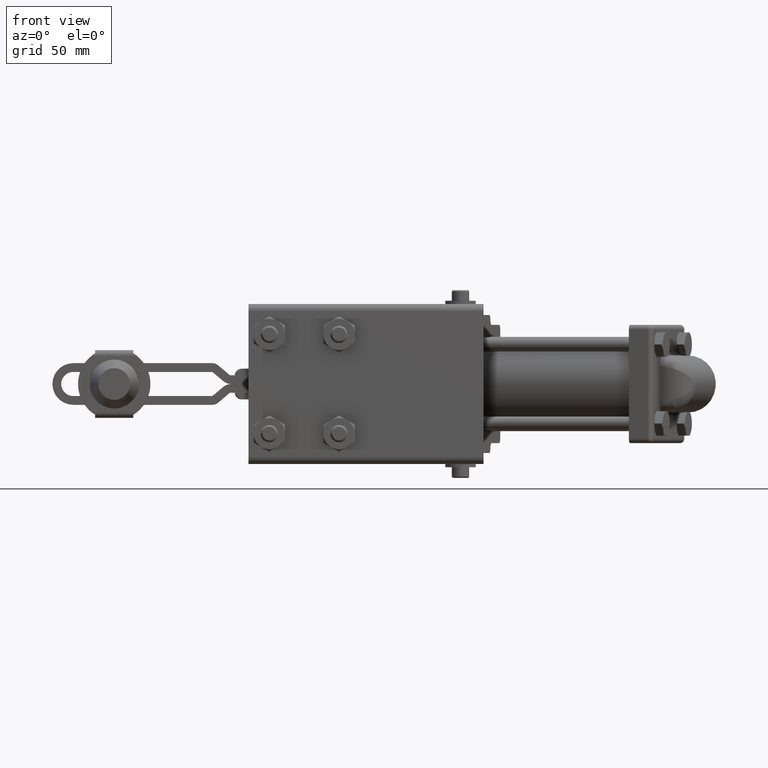
[diagram: clean part render]
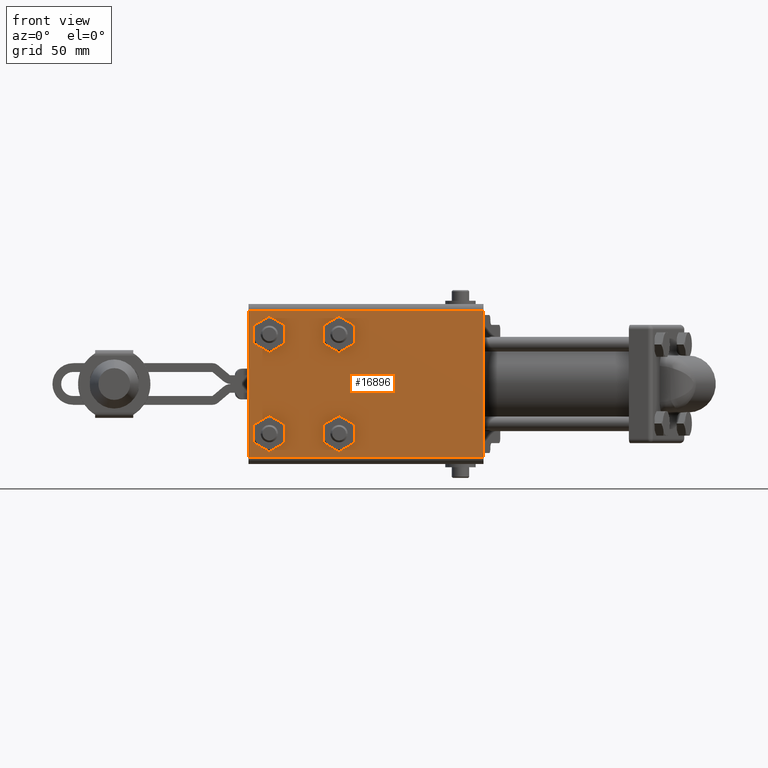
[diagram: same view with one face highlighted and labeled with its STEP entity id]
A machine part, front view. The second image highlights one B-rep face of the part: STEP entity #16896.
In plain terms, the highlighted planar face has unit normal (0, 1, 0).
Its self-contained STEP definition (entity closure, byte-faithful):
#132 = VERTEX_POINT ( 'NONE', #11380 ) ;
#223 = ORIENTED_EDGE ( 'NONE', *, *, #18607, .T. ) ;
#272 = DIRECTION ( 'NONE',  ( 1.000000000000000000, 0.0000000000000000000, 0.0000000000000000000 ) ) ;
#279 = CARTESIAN_POINT ( 'NONE',  ( -8.700000000000034800, -3.200000000000006000, -22.65000000000001600 ) ) ;
#495 = DIRECTION ( 'NONE',  ( 1.000000000000000000, 0.0000000000000000000, 9.721878981011610300E-016 ) ) ;
#627 = AXIS2_PLACEMENT_3D ( 'NONE', #22513, #6973, #25097 ) ;
#774 = CIRCLE ( 'NONE', #18172, 7.137400000000000400 ) ;
#881 = CARTESIAN_POINT ( 'NONE',  ( -40.50000000000003600, -3.200000000000010800, 22.64999999999998400 ) ) ;
#1235 = VERTEX_POINT ( 'NONE', #28208 ) ;
#1425 = DIRECTION ( 'NONE',  ( 2.813005866653587400E-018, 1.000000000000000000, 1.919918539452345000E-017 ) ) ;
#1580 = DIRECTION ( 'NONE',  ( 1.000000000000000000, 0.0000000000000000000, 0.0000000000000000000 ) ) ;
#1596 = CARTESIAN_POINT ( 'NONE',  ( -50.00000000000002800, -3.199999999999998000, -33.29000000000000600 ) ) ;
#1669 = CARTESIAN_POINT ( 'NONE',  ( 57.19999999999997400, -3.199999999999998000, -33.29000000000000600 ) ) ;
#1708 = CIRCLE ( 'NONE', #20861, 7.137400000000002200 ) ;
#1905 = CIRCLE ( 'NONE', #5351, 7.137399999999999500 ) ;
#1972 = EDGE_CURVE ( 'NONE', #27231, #5147, #21167, .T. ) ;
#2001 = CIRCLE ( 'NONE', #7254, 7.137400000000002200 ) ;
#2128 = AXIS2_PLACEMENT_3D ( 'NONE', #11473, #22983, #28482 ) ;
#2218 = ORIENTED_EDGE ( 'NONE', *, *, #27636, .T. ) ;
#2386 = DIRECTION ( 'NONE',  ( 2.813005866653587400E-018, 1.000000000000000000, 1.919918539452345000E-017 ) ) ;
#2661 = CARTESIAN_POINT ( 'NONE',  ( -33.36260000000003600, -3.199999999999999300, -22.65000000000001600 ) ) ;
#2709 = ORIENTED_EDGE ( 'NONE', *, *, #22244, .T. ) ;
#2844 = DIRECTION ( 'NONE',  ( 1.000000000000000000, 0.0000000000000000000, 0.0000000000000000000 ) ) ;
#2846 = EDGE_CURVE ( 'NONE', #6351, #3181, #16622, .T. ) ;
#3115 = EDGE_CURVE ( 'NONE', #22178, #11257, #2001, .T. ) ;
#3181 = VERTEX_POINT ( 'NONE', #7623 ) ;
#3268 = CARTESIAN_POINT ( 'NONE',  ( 57.19999999999997400, -3.199999999999998000, -33.29000000000000600 ) ) ;
#3492 = EDGE_CURVE ( 'NONE', #132, #1235, #1905, .T. ) ;
#3577 = DIRECTION ( 'NONE',  ( 1.000000000000000000, 0.0000000000000000000, 2.430469745252902400E-015 ) ) ;
#3585 = CIRCLE ( 'NONE', #16323, 7.137399999999999500 ) ;
#3631 = EDGE_LOOP ( 'NONE', ( #26752, #4483, #10287, #2218 ) ) ;
#3723 = ORIENTED_EDGE ( 'NONE', *, *, #20007, .T. ) ;
#4018 = CARTESIAN_POINT ( 'NONE',  ( 57.19999999999997400, -3.200000000000006400, 33.28999999999998500 ) ) ;
#4041 = CARTESIAN_POINT ( 'NONE',  ( -40.50000000000003600, -3.200000000000006000, -22.65000000000001600 ) ) ;
#4132 = FACE_BOUND ( 'NONE', #20227, .T. ) ;
#4134 = EDGE_CURVE ( 'NONE', #29221, #5147, #22537, .T. ) ;
#4262 = DIRECTION ( 'NONE',  ( 2.813005866653587400E-018, 1.000000000000000000, 1.919918539452345000E-017 ) ) ;
#4327 = DIRECTION ( 'NONE',  ( 2.813005866653587400E-018, 1.000000000000000000, 1.919918539452345000E-017 ) ) ;
#4364 = CARTESIAN_POINT ( 'NONE',  ( -8.700000000000034800, -3.200000000000010800, 22.64999999999998400 ) ) ;
#4423 = CARTESIAN_POINT ( 'NONE',  ( -40.50000000000003600, -3.200000000000010800, 22.64999999999998400 ) ) ;
#4483 = ORIENTED_EDGE ( 'NONE', *, *, #4134, .F. ) ;
#4595 = DIRECTION ( 'NONE',  ( 2.813005866653587400E-018, 1.000000000000000000, 1.919918539452345000E-017 ) ) ;
#4738 = AXIS2_PLACEMENT_3D ( 'NONE', #24345, #8804, #26925 ) ;
#4828 = CARTESIAN_POINT ( 'NONE',  ( -44.06870000000004900, -3.199999999999998800, -28.83116971697105400 ) ) ;
#4890 = ORIENTED_EDGE ( 'NONE', *, *, #19924, .T. ) ;
#5147 = VERTEX_POINT ( 'NONE', #1596 ) ;
#5324 = CARTESIAN_POINT ( 'NONE',  ( -8.700000000000034800, -3.200000000000006000, -22.65000000000001600 ) ) ;
#5351 = AXIS2_PLACEMENT_3D ( 'NONE', #23075, #1425, #21794 ) ;
#5527 = AXIS2_PLACEMENT_3D ( 'NONE', #31255, #15768, #272 ) ;
#6042 = CIRCLE ( 'NONE', #10139, 7.137399999999999500 ) ;
#6351 = VERTEX_POINT ( 'NONE', #4828 ) ;
#6440 = CARTESIAN_POINT ( 'NONE',  ( -5.131300000000015500, -3.199999999999998400, -28.83116971697108300 ) ) ;
#6621 = DIRECTION ( 'NONE',  ( 1.000000000000000000, 0.0000000000000000000, 0.0000000000000000000 ) ) ;
#6714 = DIRECTION ( 'NONE',  ( 2.813005866653587400E-018, 1.000000000000000000, 1.919918539452345000E-017 ) ) ;
#6722 = DIRECTION ( 'NONE',  ( 2.813005866653587400E-018, 1.000000000000000000, 1.919918539452345000E-017 ) ) ;
#6756 = DIRECTION ( 'NONE',  ( 2.813005866653587400E-018, 1.000000000000000000, 1.919918539452345000E-017 ) ) ;
#6790 = DIRECTION ( 'NONE',  ( 2.813005866653587400E-018, 1.000000000000000000, 1.919918539452345000E-017 ) ) ;
#6853 = CARTESIAN_POINT ( 'NONE',  ( -1.562600000000032000, -3.200000000000005100, 22.64999999999998400 ) ) ;
#6973 = DIRECTION ( 'NONE',  ( 2.813005866653587400E-018, 1.000000000000000000, 1.919918539452345000E-017 ) ) ;
#7027 = DIRECTION ( 'NONE',  ( 1.000000000000000000, 0.0000000000000000000, 0.0000000000000000000 ) ) ;
#7042 = CARTESIAN_POINT ( 'NONE',  ( -8.700000000000034800, -3.200000000000010800, 22.64999999999998400 ) ) ;
#7223 = VERTEX_POINT ( 'NONE', #8726 ) ;
#7239 = AXIS2_PLACEMENT_3D ( 'NONE', #22306, #6790, #24919 ) ;
#7254 = AXIS2_PLACEMENT_3D ( 'NONE', #8868, #6722, #11928 ) ;
#7515 = ORIENTED_EDGE ( 'NONE', *, *, #8228, .F. ) ;
#7536 = AXIS2_PLACEMENT_3D ( 'NONE', #22225, #6714, #24829 ) ;
#7623 = CARTESIAN_POINT ( 'NONE',  ( -47.63740000000003500, -3.199999999999999300, -22.65000000000001600 ) ) ;
#7916 = ORIENTED_EDGE ( 'NONE', *, *, #8446, .T. ) ;
#7919 = DIRECTION ( 'NONE',  ( 1.000000000000000000, 0.0000000000000000000, 0.0000000000000000000 ) ) ;
#7979 = ORIENTED_EDGE ( 'NONE', *, *, #25820, .T. ) ;
#7981 = CARTESIAN_POINT ( 'NONE',  ( -8.700000000000034800, -3.200000000000006000, -22.65000000000001600 ) ) ;
#8133 = CIRCLE ( 'NONE', #23530, 7.137400000000002200 ) ;
#8228 = EDGE_CURVE ( 'NONE', #18407, #25252, #10527, .T. ) ;
#8375 = CARTESIAN_POINT ( 'NONE',  ( -44.06870000000004200, -3.200000000000006000, 28.83116971697103600 ) ) ;
#8393 = CIRCLE ( 'NONE', #5527, 7.137400000000002200 ) ;
#8446 = EDGE_CURVE ( 'NONE', #10347, #13187, #3585, .T. ) ;
#8541 = LINE ( 'NONE', #19381, #29165 ) ;
#8726 = CARTESIAN_POINT ( 'NONE',  ( -44.06870000000005700, -3.200000000000000200, -16.46883028302897100 ) ) ;
#8804 = DIRECTION ( 'NONE',  ( 2.813005866653587400E-018, 1.000000000000000000, 1.919918539452345000E-017 ) ) ;
#8868 = CARTESIAN_POINT ( 'NONE',  ( -40.50000000000003600, -3.200000000000010800, 22.64999999999998400 ) ) ;
#9070 = ORIENTED_EDGE ( 'NONE', *, *, #32392, .T. ) ;
#9154 = CARTESIAN_POINT ( 'NONE',  ( -8.700000000000034800, -3.200000000000010800, 22.64999999999998400 ) ) ;
#9157 = CARTESIAN_POINT ( 'NONE',  ( -33.36260000000003600, -3.200000000000010800, 22.64999999999998400 ) ) ;
#9265 = EDGE_CURVE ( 'NONE', #11257, #17417, #27192, .T. ) ;
#9561 = ORIENTED_EDGE ( 'NONE', *, *, #23945, .T. ) ;
#9604 = EDGE_CURVE ( 'NONE', #25508, #6351, #8133, .T. ) ;
#10139 = AXIS2_PLACEMENT_3D ( 'NONE', #279, #18368, #2844 ) ;
#10209 = FACE_OUTER_BOUND ( 'NONE', #3631, .T. ) ;
#10270 = AXIS2_PLACEMENT_3D ( 'NONE', #881, #4595, #27236 ) ;
#10287 = ORIENTED_EDGE ( 'NONE', *, *, #22156, .F. ) ;
#10347 = VERTEX_POINT ( 'NONE', #22400 ) ;
#10527 = CIRCLE ( 'NONE', #31478, 7.137400000000000400 ) ;
#10534 = VERTEX_POINT ( 'NONE', #21358 ) ;
#10588 = DIRECTION ( 'NONE',  ( 1.000000000000000000, 0.0000000000000000000, 1.944375796202322800E-015 ) ) ;
#11122 = CIRCLE ( 'NONE', #2128, 7.137400000000002200 ) ;
#11257 = VERTEX_POINT ( 'NONE', #28058 ) ;
#11380 = CARTESIAN_POINT ( 'NONE',  ( -15.83740000000003600, -3.199999999999999300, -22.65000000000001600 ) ) ;
#11473 = CARTESIAN_POINT ( 'NONE',  ( -40.50000000000003600, -3.200000000000006000, -22.65000000000001600 ) ) ;
#11620 = DIRECTION ( 'NONE',  ( 2.813005866653587400E-018, 1.000000000000000000, 1.919918539452345000E-017 ) ) ;
#11708 = AXIS2_PLACEMENT_3D ( 'NONE', #5324, #23461, #7919 ) ;
#11713 = CARTESIAN_POINT ( 'NONE',  ( -15.83740000000002900, -3.200000000000005100, 22.64999999999998400 ) ) ;
#11742 = DIRECTION ( 'NONE',  ( 1.000000000000000000, 0.0000000000000000000, 0.0000000000000000000 ) ) ;
#11911 = AXIS2_PLACEMENT_3D ( 'NONE', #17902, #2386, #20512 ) ;
#11928 = DIRECTION ( 'NONE',  ( 1.000000000000000000, 0.0000000000000000000, -9.721878981011610300E-016 ) ) ;
#12027 = AXIS2_PLACEMENT_3D ( 'NONE', #15244, #22883, #3577 ) ;
#12071 = DIRECTION ( 'NONE',  ( -0.0000000000000000000, 1.000000000000000000, 1.224606353822377500E-016 ) ) ;
#12101 = AXIS2_PLACEMENT_3D ( 'NONE', #7981, #26118, #10588 ) ;
#12192 = EDGE_CURVE ( 'NONE', #3181, #7223, #11122, .T. ) ;
#12241 = CIRCLE ( 'NONE', #7536, 7.137399999999999500 ) ;
#12281 = CARTESIAN_POINT ( 'NONE',  ( -36.93130000000002900, -3.200000000000006000, -16.46883028302896800 ) ) ;
#12378 = ORIENTED_EDGE ( 'NONE', *, *, #3492, .T. ) ;
#12431 = LINE ( 'NONE', #31524, #20128 ) ;
#12536 = ORIENTED_EDGE ( 'NONE', *, *, #2846, .T. ) ;
#12680 = CARTESIAN_POINT ( 'NONE',  ( -5.131300000000026200, -3.200000000000000200, -16.46883028302896800 ) ) ;
#12910 = VERTEX_POINT ( 'NONE', #2661 ) ;
#12999 = DIRECTION ( 'NONE',  ( 2.813005866653587400E-018, 1.000000000000000000, 1.919918539452345000E-017 ) ) ;
#13142 = ORIENTED_EDGE ( 'NONE', *, *, #18032, .F. ) ;
#13187 = VERTEX_POINT ( 'NONE', #11713 ) ;
#13365 = AXIS2_PLACEMENT_3D ( 'NONE', #27593, #12071, #30167 ) ;
#13426 = DIRECTION ( 'NONE',  ( -1.000000000000000000, -0.0000000000000000000, -0.0000000000000000000 ) ) ;
#13603 = ORIENTED_EDGE ( 'NONE', *, *, #17771, .T. ) ;
#13971 = VERTEX_POINT ( 'NONE', #8375 ) ;
#14248 = AXIS2_PLACEMENT_3D ( 'NONE', #9154, #27259, #11742 ) ;
#14302 = VECTOR ( 'NONE', #29898, 1000.000000000000000 ) ;
#14324 = CARTESIAN_POINT ( 'NONE',  ( -47.63740000000003500, -3.200000000000005100, 22.64999999999998400 ) ) ;
#14643 = AXIS2_PLACEMENT_3D ( 'NONE', #22268, #6756, #24883 ) ;
#14748 = CIRCLE ( 'NONE', #19107, 7.137400000000002200 ) ;
#14983 = ORIENTED_EDGE ( 'NONE', *, *, #9604, .T. ) ;
#15244 = CARTESIAN_POINT ( 'NONE',  ( -40.50000000000003600, -3.200000000000006000, -22.65000000000001600 ) ) ;
#15768 = DIRECTION ( 'NONE',  ( -2.813005866653587400E-018, -1.000000000000000000, -1.919918539452345000E-017 ) ) ;
#15829 = ORIENTED_EDGE ( 'NONE', *, *, #12192, .T. ) ;
#16024 = CIRCLE ( 'NONE', #11708, 7.137399999999999500 ) ;
#16099 = CIRCLE ( 'NONE', #11911, 7.137400000000002200 ) ;
#16138 = EDGE_CURVE ( 'NONE', #12910, #31474, #8393, .T. ) ;
#16143 = DIRECTION ( 'NONE',  ( -1.000000000000000000, -0.0000000000000000000, -0.0000000000000000000 ) ) ;
#16323 = AXIS2_PLACEMENT_3D ( 'NONE', #7042, #4327, #20530 ) ;
#16363 = VERTEX_POINT ( 'NONE', #6440 ) ;
#16449 = VECTOR ( 'NONE', #16143, 1000.000000000000000 ) ;
#16622 = CIRCLE ( 'NONE', #12027, 7.137400000000002200 ) ;
#16858 = CARTESIAN_POINT ( 'NONE',  ( -50.00000000000002800, -3.200000000000006400, 33.28999999999998500 ) ) ;
#16896 = ADVANCED_FACE ( 'NONE', ( #24000, #24796, #4132, #17088, #10209 ), #32674, .F. ) ;
#16947 = CARTESIAN_POINT ( 'NONE',  ( -50.00000000000002800, -3.200000000000006800, 36.49999999999998600 ) ) ;
#17084 = DIRECTION ( 'NONE',  ( -2.813005866653587400E-018, -1.000000000000000000, -1.919918539452345000E-017 ) ) ;
#17088 = FACE_BOUND ( 'NONE', #21647, .T. ) ;
#17417 = VERTEX_POINT ( 'NONE', #14324 ) ;
#17537 = EDGE_LOOP ( 'NONE', ( #33568, #18236, #21486, #23041, #3723, #4890 ) ) ;
#17771 = EDGE_CURVE ( 'NONE', #10534, #16363, #6042, .T. ) ;
#17902 = CARTESIAN_POINT ( 'NONE',  ( -40.50000000000003600, -3.200000000000010800, 22.64999999999998400 ) ) ;
#18032 = EDGE_CURVE ( 'NONE', #10534, #23790, #774, .T. ) ;
#18172 = AXIS2_PLACEMENT_3D ( 'NONE', #32585, #17084, #1580 ) ;
#18236 = ORIENTED_EDGE ( 'NONE', *, *, #19054, .T. ) ;
#18368 = DIRECTION ( 'NONE',  ( 2.813005866653587400E-018, 1.000000000000000000, 1.919918539452345000E-017 ) ) ;
#18407 = VERTEX_POINT ( 'NONE', #6853 ) ;
#18423 = EDGE_CURVE ( 'NONE', #13187, #30750, #33571, .T. ) ;
#18607 = EDGE_CURVE ( 'NONE', #29996, #132, #22215, .T. ) ;
#19054 = EDGE_CURVE ( 'NONE', #27266, #22178, #16099, .T. ) ;
#19107 = AXIS2_PLACEMENT_3D ( 'NONE', #19779, #4262, #22391 ) ;
#19252 = CARTESIAN_POINT ( 'NONE',  ( -12.26870000000004900, -3.200000000000006000, 28.83116971697103600 ) ) ;
#19274 = DIRECTION ( 'NONE',  ( 0.0000000000000000000, 1.224606353822377300E-016, -1.000000000000000000 ) ) ;
#19381 = CARTESIAN_POINT ( 'NONE',  ( 57.19999999999997400, -3.200000000000006800, 36.49999999999998600 ) ) ;
#19618 = CARTESIAN_POINT ( 'NONE',  ( -12.26870000000005200, -3.199999999999998400, -28.83116971697108300 ) ) ;
#19630 = EDGE_CURVE ( 'NONE', #16363, #29996, #16024, .T. ) ;
#19779 = CARTESIAN_POINT ( 'NONE',  ( -40.50000000000003600, -3.200000000000010800, 22.64999999999998400 ) ) ;
#19818 = CARTESIAN_POINT ( 'NONE',  ( -5.131300000000026200, -3.200000000000010800, 28.83116971697103300 ) ) ;
#19924 = EDGE_CURVE ( 'NONE', #13971, #24007, #25691, .T. ) ;
#20007 = EDGE_CURVE ( 'NONE', #17417, #13971, #14748, .T. ) ;
#20128 = VECTOR ( 'NONE', #13426, 1000.000000000000000 ) ;
#20227 = EDGE_LOOP ( 'NONE', ( #9561, #9070, #7916, #30590, #22901, #7515 ) ) ;
#20512 = DIRECTION ( 'NONE',  ( 1.000000000000000000, 0.0000000000000000000, 0.0000000000000000000 ) ) ;
#20530 = DIRECTION ( 'NONE',  ( 1.000000000000000000, 0.0000000000000000000, 0.0000000000000000000 ) ) ;
#20838 = EDGE_CURVE ( 'NONE', #27266, #24007, #25670, .T. ) ;
#20861 = AXIS2_PLACEMENT_3D ( 'NONE', #28491, #12999, #31112 ) ;
#21167 = LINE ( 'NONE', #16947, #14302 ) ;
#21358 = CARTESIAN_POINT ( 'NONE',  ( -1.562600000000033700, -3.200000000000006000, -22.65000000000001600 ) ) ;
#21486 = ORIENTED_EDGE ( 'NONE', *, *, #3115, .T. ) ;
#21647 = EDGE_LOOP ( 'NONE', ( #7979, #14983, #12536, #15829, #2709, #31647 ) ) ;
#21794 = DIRECTION ( 'NONE',  ( 1.000000000000000000, 0.0000000000000000000, 0.0000000000000000000 ) ) ;
#21951 = CARTESIAN_POINT ( 'NONE',  ( -36.93130000000002900, -3.200000000000006000, 28.83116971697103300 ) ) ;
#22142 = CIRCLE ( 'NONE', #4738, 7.137399999999999500 ) ;
#22156 = EDGE_CURVE ( 'NONE', #26116, #29221, #8541, .T. ) ;
#22178 = VERTEX_POINT ( 'NONE', #32474 ) ;
#22215 = CIRCLE ( 'NONE', #12101, 7.137399999999999500 ) ;
#22225 = CARTESIAN_POINT ( 'NONE',  ( -8.700000000000034800, -3.200000000000010800, 22.64999999999998400 ) ) ;
#22244 = EDGE_CURVE ( 'NONE', #7223, #31474, #26769, .T. ) ;
#22268 = CARTESIAN_POINT ( 'NONE',  ( -8.700000000000034800, -3.200000000000006000, -22.65000000000001600 ) ) ;
#22306 = CARTESIAN_POINT ( 'NONE',  ( -40.50000000000003600, -3.200000000000006000, -22.65000000000001600 ) ) ;
#22391 = DIRECTION ( 'NONE',  ( 1.000000000000000000, 0.0000000000000000000, 0.0000000000000000000 ) ) ;
#22400 = CARTESIAN_POINT ( 'NONE',  ( -12.26870000000006300, -3.200000000000004200, 16.46883028302893600 ) ) ;
#22513 = CARTESIAN_POINT ( 'NONE',  ( -8.700000000000034800, -3.200000000000010800, 22.64999999999998400 ) ) ;
#22537 = LINE ( 'NONE', #3268, #16449 ) ;
#22570 = DIRECTION ( 'NONE',  ( -2.813005866653587400E-018, -1.000000000000000000, -1.919918539452345000E-017 ) ) ;
#22868 = EDGE_CURVE ( 'NONE', #1235, #23790, #28715, .T. ) ;
#22883 = DIRECTION ( 'NONE',  ( 2.813005866653587400E-018, 1.000000000000000000, 1.919918539452345000E-017 ) ) ;
#22901 = ORIENTED_EDGE ( 'NONE', *, *, #33368, .T. ) ;
#22983 = DIRECTION ( 'NONE',  ( 2.813005866653587400E-018, 1.000000000000000000, 1.919918539452345000E-017 ) ) ;
#23041 = ORIENTED_EDGE ( 'NONE', *, *, #9265, .T. ) ;
#23075 = CARTESIAN_POINT ( 'NONE',  ( -8.700000000000034800, -3.200000000000006000, -22.65000000000001600 ) ) ;
#23461 = DIRECTION ( 'NONE',  ( 2.813005866653587400E-018, 1.000000000000000000, 1.919918539452345000E-017 ) ) ;
#23530 = AXIS2_PLACEMENT_3D ( 'NONE', #4041, #25671, #495 ) ;
#23790 = VERTEX_POINT ( 'NONE', #12680 ) ;
#23945 = EDGE_CURVE ( 'NONE', #18407, #31391, #22142, .T. ) ;
#24000 = FACE_BOUND ( 'NONE', #24487, .T. ) ;
#24007 = VERTEX_POINT ( 'NONE', #21951 ) ;
#24345 = CARTESIAN_POINT ( 'NONE',  ( -8.700000000000034800, -3.200000000000010800, 22.64999999999998400 ) ) ;
#24487 = EDGE_LOOP ( 'NONE', ( #13142, #13603, #25769, #223, #12378, #33496 ) ) ;
#24796 = FACE_BOUND ( 'NONE', #17537, .T. ) ;
#24829 = DIRECTION ( 'NONE',  ( 1.000000000000000000, 0.0000000000000000000, 0.0000000000000000000 ) ) ;
#24883 = DIRECTION ( 'NONE',  ( 1.000000000000000000, 0.0000000000000000000, 0.0000000000000000000 ) ) ;
#24919 = DIRECTION ( 'NONE',  ( 1.000000000000000000, 0.0000000000000000000, 1.944375796202322100E-015 ) ) ;
#25097 = DIRECTION ( 'NONE',  ( 1.000000000000000000, 0.0000000000000000000, 0.0000000000000000000 ) ) ;
#25252 = VERTEX_POINT ( 'NONE', #19818 ) ;
#25508 = VERTEX_POINT ( 'NONE', #26945 ) ;
#25670 = CIRCLE ( 'NONE', #32127, 7.137400000000002200 ) ;
#25671 = DIRECTION ( 'NONE',  ( 2.813005866653587400E-018, 1.000000000000000000, 1.919918539452345000E-017 ) ) ;
#25691 = CIRCLE ( 'NONE', #31881, 7.137400000000002200 ) ;
#25769 = ORIENTED_EDGE ( 'NONE', *, *, #19630, .T. ) ;
#25820 = EDGE_CURVE ( 'NONE', #12910, #25508, #1708, .T. ) ;
#26116 = VERTEX_POINT ( 'NONE', #4018 ) ;
#26118 = DIRECTION ( 'NONE',  ( 2.813005866653587400E-018, 1.000000000000000000, 1.919918539452345000E-017 ) ) ;
#26752 = ORIENTED_EDGE ( 'NONE', *, *, #1972, .T. ) ;
#26769 = CIRCLE ( 'NONE', #7239, 7.137400000000002200 ) ;
#26925 = DIRECTION ( 'NONE',  ( 1.000000000000000000, 0.0000000000000000000, 0.0000000000000000000 ) ) ;
#26945 = CARTESIAN_POINT ( 'NONE',  ( -36.93130000000004300, -3.199999999999998800, -28.83116971697109700 ) ) ;
#27143 = CARTESIAN_POINT ( 'NONE',  ( -40.50000000000003600, -3.200000000000010800, 22.64999999999998400 ) ) ;
#27192 = CIRCLE ( 'NONE', #10270, 7.137400000000002200 ) ;
#27231 = VERTEX_POINT ( 'NONE', #16858 ) ;
#27236 = DIRECTION ( 'NONE',  ( 1.000000000000000000, 0.0000000000000000000, 1.944375796202322100E-015 ) ) ;
#27259 = DIRECTION ( 'NONE',  ( 2.813005866653587400E-018, 1.000000000000000000, 1.919918539452345000E-017 ) ) ;
#27266 = VERTEX_POINT ( 'NONE', #9157 ) ;
#27280 = CIRCLE ( 'NONE', #14248, 7.137399999999999500 ) ;
#27593 = CARTESIAN_POINT ( 'NONE',  ( 57.19999999999997400, -3.200000000000006800, 36.49999999999998600 ) ) ;
#27636 = EDGE_CURVE ( 'NONE', #26116, #27231, #12431, .T. ) ;
#28058 = CARTESIAN_POINT ( 'NONE',  ( -44.06870000000005700, -3.200000000000004200, 16.46883028302891800 ) ) ;
#28208 = CARTESIAN_POINT ( 'NONE',  ( -12.26870000000004200, -3.200000000000000200, -16.46883028302896400 ) ) ;
#28482 = DIRECTION ( 'NONE',  ( 1.000000000000000000, 0.0000000000000000000, -1.944375796202322100E-015 ) ) ;
#28491 = CARTESIAN_POINT ( 'NONE',  ( -40.50000000000003600, -3.200000000000006000, -22.65000000000001600 ) ) ;
#28715 = CIRCLE ( 'NONE', #14643, 7.137399999999999500 ) ;
#29165 = VECTOR ( 'NONE', #19274, 1000.000000000000000 ) ;
#29221 = VERTEX_POINT ( 'NONE', #1669 ) ;
#29710 = DIRECTION ( 'NONE',  ( 1.000000000000000000, 0.0000000000000000000, 0.0000000000000000000 ) ) ;
#29898 = DIRECTION ( 'NONE',  ( 0.0000000000000000000, 1.224606353822377300E-016, -1.000000000000000000 ) ) ;
#29996 = VERTEX_POINT ( 'NONE', #19618 ) ;
#30167 = DIRECTION ( 'NONE',  ( 0.0000000000000000000, -1.224606353822377500E-016, 1.000000000000000000 ) ) ;
#30590 = ORIENTED_EDGE ( 'NONE', *, *, #18423, .T. ) ;
#30750 = VERTEX_POINT ( 'NONE', #19252 ) ;
#31112 = DIRECTION ( 'NONE',  ( 1.000000000000000000, 0.0000000000000000000, 0.0000000000000000000 ) ) ;
#31255 = CARTESIAN_POINT ( 'NONE',  ( -40.50000000000003600, -3.200000000000006000, -22.65000000000001600 ) ) ;
#31391 = VERTEX_POINT ( 'NONE', #32417 ) ;
#31474 = VERTEX_POINT ( 'NONE', #12281 ) ;
#31478 = AXIS2_PLACEMENT_3D ( 'NONE', #4364, #32116, #6621 ) ;
#31524 = CARTESIAN_POINT ( 'NONE',  ( 57.19999999999997400, -3.200000000000006400, 33.28999999999998500 ) ) ;
#31647 = ORIENTED_EDGE ( 'NONE', *, *, #16138, .F. ) ;
#31881 = AXIS2_PLACEMENT_3D ( 'NONE', #27143, #11620, #29710 ) ;
#32116 = DIRECTION ( 'NONE',  ( -2.813005866653587400E-018, -1.000000000000000000, -1.919918539452345000E-017 ) ) ;
#32127 = AXIS2_PLACEMENT_3D ( 'NONE', #4423, #22570, #7027 ) ;
#32392 = EDGE_CURVE ( 'NONE', #31391, #10347, #27280, .T. ) ;
#32417 = CARTESIAN_POINT ( 'NONE',  ( -5.131300000000040400, -3.200000000000004200, 16.46883028302891100 ) ) ;
#32474 = CARTESIAN_POINT ( 'NONE',  ( -36.93130000000002200, -3.200000000000004200, 16.46883028302892200 ) ) ;
#32585 = CARTESIAN_POINT ( 'NONE',  ( -8.700000000000034800, -3.200000000000006000, -22.65000000000001600 ) ) ;
#32674 = PLANE ( 'NONE',  #13365 ) ;
#33368 = EDGE_CURVE ( 'NONE', #30750, #25252, #12241, .T. ) ;
#33496 = ORIENTED_EDGE ( 'NONE', *, *, #22868, .T. ) ;
#33568 = ORIENTED_EDGE ( 'NONE', *, *, #20838, .F. ) ;
#33571 = CIRCLE ( 'NONE', #627, 7.137399999999999500 ) ;